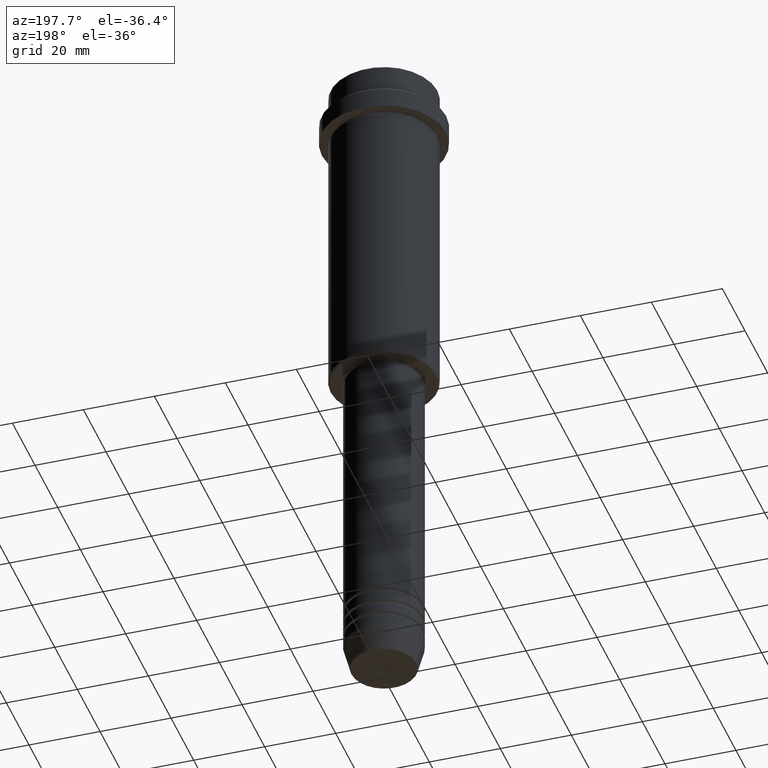
[diagram: clean part render]
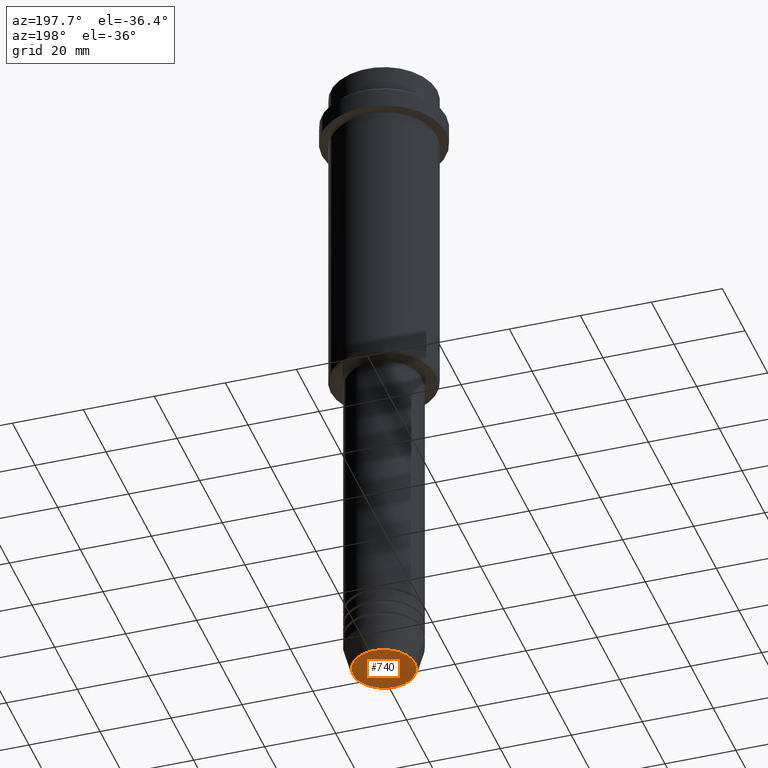
[diagram: same view with one face highlighted and labeled with its STEP entity id]
A machine part, auxiliary view. The second image highlights one B-rep face of the part: STEP entity #740.
In plain terms, the highlighted planar face has unit normal (0, -0, 1).
Its self-contained STEP definition (entity closure, byte-faithful):
#107 = AXIS2_PLACEMENT_3D ( 'NONE', #928, #1158, #385 ) ;
#170 = PLANE ( 'NONE',  #1278 ) ;
#196 = EDGE_CURVE ( 'NONE', #1336, #1359, #1227, .T. ) ;
#236 = CARTESIAN_POINT ( 'NONE',  ( 8.740692158992656502, 0.000000000000000000, -190.0000000000000000 ) ) ;
#312 = ORIENTED_EDGE ( 'NONE', *, *, #527, .T. ) ;
#337 = CARTESIAN_POINT ( 'NONE',  ( 0.000000000000000000, 0.000000000000000000, -190.0000000000000000 ) ) ;
#385 = DIRECTION ( 'NONE',  ( 1.000000000000000000, 0.000000000000000000, 0.000000000000000000 ) ) ;
#431 = CIRCLE ( 'NONE', #107, 8.740692158992656502 ) ;
#479 = DIRECTION ( 'NONE',  ( 1.000000000000000000, 0.000000000000000000, 0.000000000000000000 ) ) ;
#527 = EDGE_CURVE ( 'NONE', #1359, #1336, #431, .T. ) ;
#583 = ORIENTED_EDGE ( 'NONE', *, *, #196, .T. ) ;
#675 = CARTESIAN_POINT ( 'NONE',  ( -8.740692158992656502, 1.099999016768739653E-15, -190.0000000000000000 ) ) ;
#740 = ADVANCED_FACE ( 'NONE', ( #1372 ), #170, .F. ) ;
#823 = AXIS2_PLACEMENT_3D ( 'NONE', #337, #1129, #479 ) ;
#928 = CARTESIAN_POINT ( 'NONE',  ( 0.000000000000000000, 0.000000000000000000, -190.0000000000000000 ) ) ;
#956 = DIRECTION ( 'NONE',  ( 1.000000000000000000, 0.000000000000000000, 0.000000000000000000 ) ) ;
#1070 = DIRECTION ( 'NONE',  ( 0.000000000000000000, -0.000000000000000000, 1.000000000000000000 ) ) ;
#1076 = CARTESIAN_POINT ( 'NONE',  ( 0.000000000000000000, 0.000000000000000000, -190.0000000000000000 ) ) ;
#1127 = EDGE_LOOP ( 'NONE', ( #583, #312 ) ) ;
#1129 = DIRECTION ( 'NONE',  ( 0.000000000000000000, 0.000000000000000000, -1.000000000000000000 ) ) ;
#1158 = DIRECTION ( 'NONE',  ( 0.000000000000000000, 0.000000000000000000, -1.000000000000000000 ) ) ;
#1227 = CIRCLE ( 'NONE', #823, 8.740692158992656502 ) ;
#1278 = AXIS2_PLACEMENT_3D ( 'NONE', #1076, #1070, #956 ) ;
#1336 = VERTEX_POINT ( 'NONE', #236 ) ;
#1359 = VERTEX_POINT ( 'NONE', #675 ) ;
#1372 = FACE_OUTER_BOUND ( 'NONE', #1127, .T. ) ;